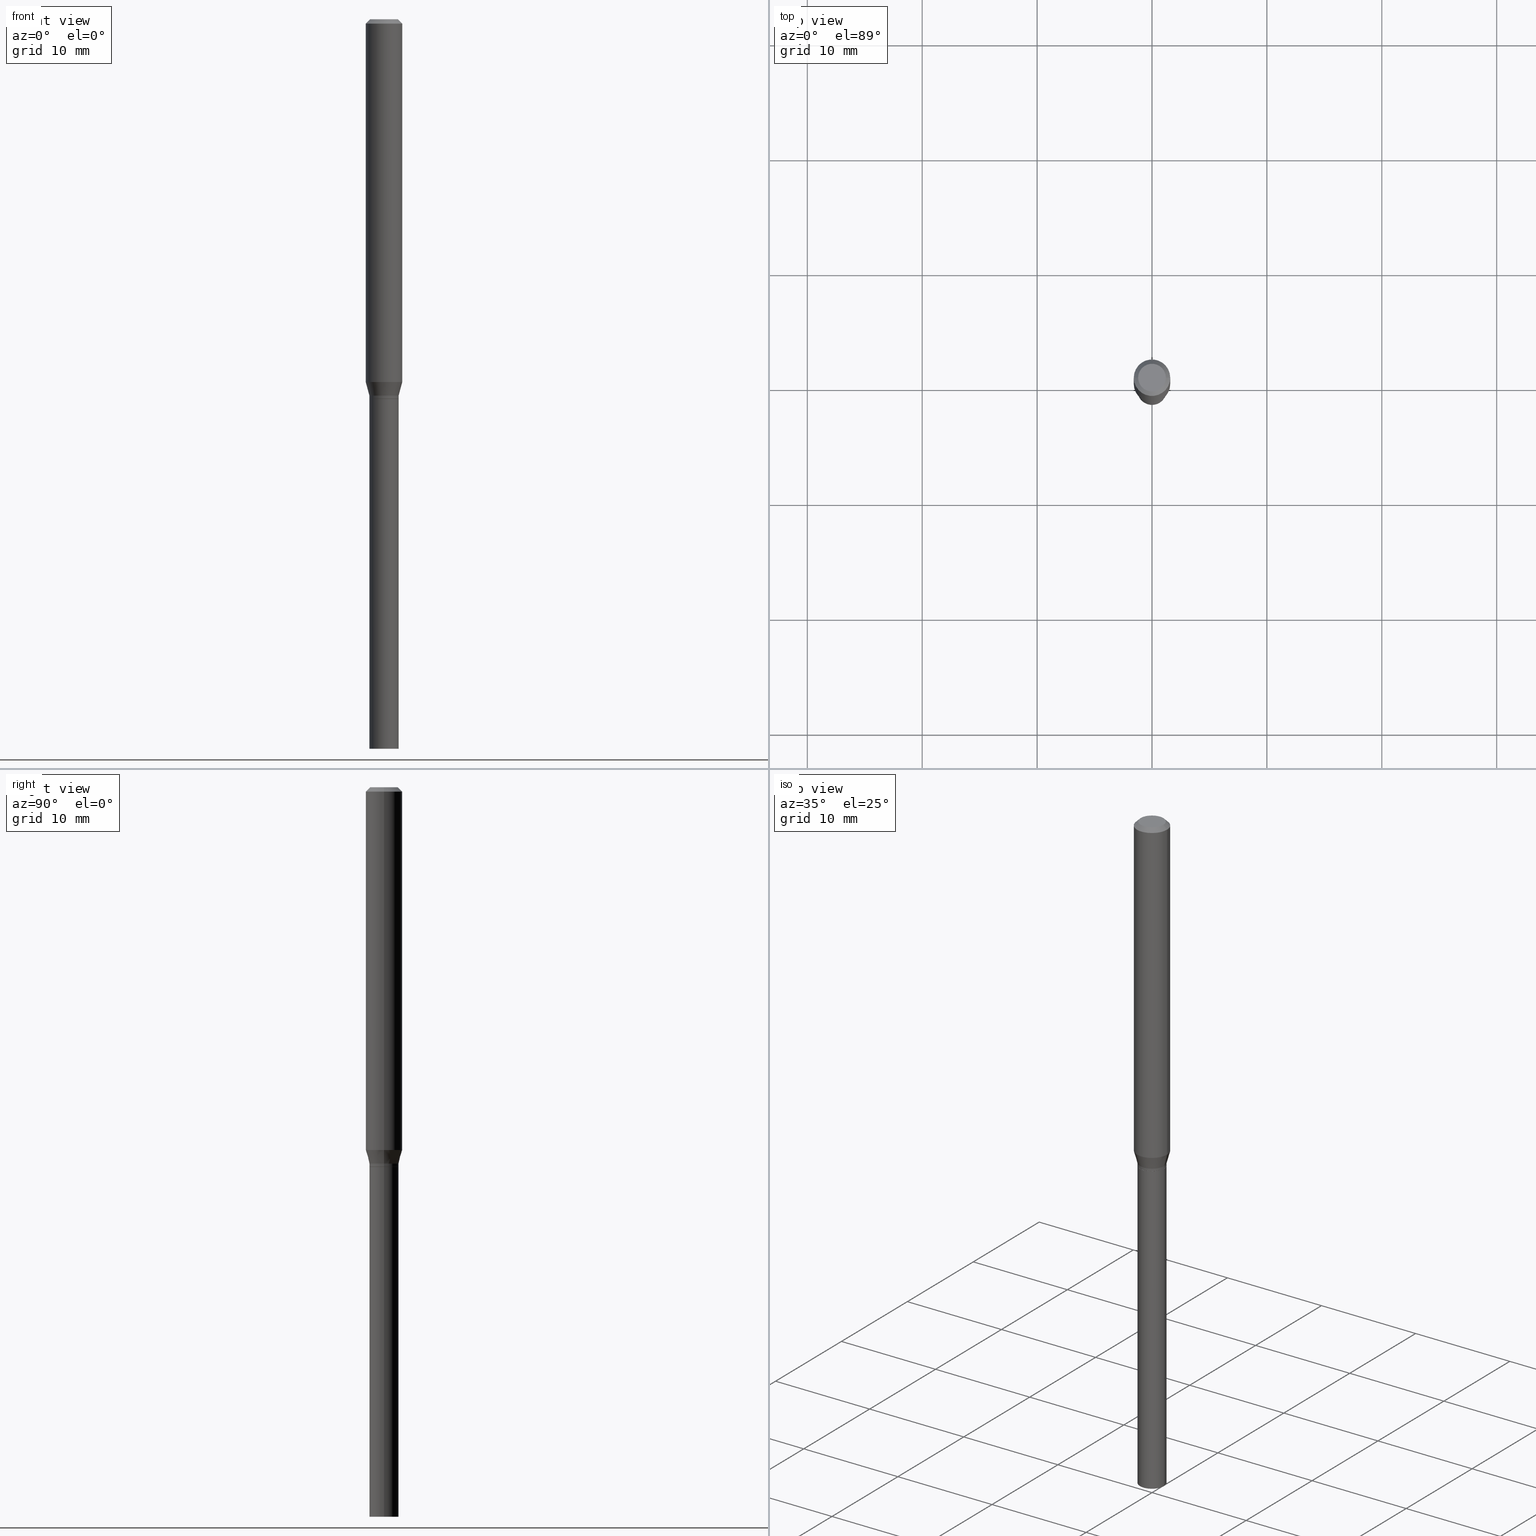
[diagram: canonical four-view strip — front | top / right | iso, engineering-drawing reading convention]
A machine part, canonical four-view strip (front | top / right | iso — engineering-drawing reading convention). The complete STEP part file that produces these views, byte-faithful:
ISO-10303-21;
HEADER;
FILE_DESCRIPTION (( 'STEP AP203' ),
    '1' );
FILE_NAME ('00661.STEP',
    '2024-03-19T22:24:16',
    ( '' ),
    ( '' ),
    'SwSTEP 2.0',
    'SolidWorks 2023',
    '' );
FILE_SCHEMA (( 'CONFIG_CONTROL_DESIGN' ));
ENDSEC;

DATA;
#1 = EDGE_CURVE ( 'NONE', #392, #311, #45, .T. ) ;
#2 = EDGE_LOOP ( 'NONE', ( #445, #175, #60, #393 ) ) ;
#3 = AXIS2_PLACEMENT_3D ( 'NONE', #299, #335, #261 ) ;
#4 = AXIS2_PLACEMENT_3D ( 'NONE', #322, #284, #429 ) ;
#5 = EDGE_LOOP ( 'NONE', ( #268, #214, #257, #370 ) ) ;
#6 = EDGE_CURVE ( 'NONE', #208, #189, #412, .T. ) ;
#7 = APPROVAL_DATE_TIME ( #186, #229 ) ;
#8 = ORIENTED_EDGE ( 'NONE', *, *, #291, .F. ) ;
#9 = CC_DESIGN_DATE_AND_TIME_ASSIGNMENT ( #64, #275, ( #306 ) ) ;
#10 = CARTESIAN_POINT ( 'NONE',  ( -0.04999999999999966971, -4.148739559227611026E-15, -1.290000000000000258 ) ) ;
#11 = EDGE_CURVE ( 'NONE', #85, #433, #40, .T. ) ;
#12 = CARTESIAN_POINT ( 'NONE',  ( 3.179109448040677352E-29, -4.538925740496089139E-15, -1.300000000000000044 ) ) ;
#13 = VECTOR ( 'NONE', #151, 39.37007874015748854 ) ;
#14 = PRODUCT ( '00661', '00661', '', ( #254 ) ) ;
#15 = DIRECTION ( 'NONE',  ( 1.000000000000000000, -6.982962677686265922E-15, 4.876176775795935793E-29 ) ) ;
#16 = CARTESIAN_POINT ( 'NONE',  ( 3.154654759978826367E-29, -4.504010927107658279E-15, -1.290000000000000258 ) ) ;
#17 = CIRCLE ( 'NONE', #380, 0.04999999999999966971 ) ;
#18 = CC_DESIGN_APPROVAL ( #283, ( #43 ) ) ;
#19 = DIRECTION ( 'NONE',  ( 1.000000000000000000, -6.982962677686262766E-15, 0.000000000000000000 ) ) ;
#20 = CARTESIAN_POINT ( 'NONE',  ( 0.05000000000000000278, -9.077851480992178278E-15, -2.500000000000000000 ) ) ;
#21 = EDGE_CURVE ( 'NONE', #110, #85, #264, .T. ) ;
#22 = DIRECTION ( 'NONE',  ( -2.445468806185136597E-29, 3.491481338843145583E-15, 1.000000000000000000 ) ) ;
#23 = CLOSED_SHELL ( 'NONE', ( #353, #188, #460, #126 ) ) ;
#24 = AXIS2_PLACEMENT_3D ( 'NONE', #119, #49, #439 ) ;
#25 = CARTESIAN_POINT ( 'NONE',  ( 3.668203209277705088E-31, -5.237222008264718399E-17, -0.01499999999999999944 ) ) ;
#26 = ORIENTED_EDGE ( 'NONE', *, *, #297, .F. ) ;
#27 = COORDINATED_UNIVERSAL_TIME_OFFSET ( 5, 0, .BEHIND. ) ;
#28 = CARTESIAN_POINT ( 'NONE',  ( -8.549555613484746295E-45, 1.220649954903729740E-30, 3.496080421005988683E-16 ) ) ;
#29 = ORIENTED_EDGE ( 'NONE', *, *, #410, .F. ) ;
#30 = COORDINATED_UNIVERSAL_TIME_OFFSET ( 5, 0, .BEHIND. ) ;
#31 = DIRECTION ( 'NONE',  ( -2.445468806185136597E-29, 3.491481338843145583E-15, 1.000000000000000000 ) ) ;
#32 = ORIENTED_EDGE ( 'NONE', *, *, #345, .T. ) ;
#33 = DIRECTION ( 'NONE',  ( -2.445468806185136877E-29, 3.491481338843145188E-15, 1.000000000000000000 ) ) ;
#34 = ORIENTED_EDGE ( 'NONE', *, *, #90, .T. ) ;
#35 = CALENDAR_DATE ( 2024, 19, 3 ) ;
#36 =( NAMED_UNIT ( * ) PLANE_ANGLE_UNIT ( ) SI_UNIT ( $, .RADIAN. ) );
#37 = ORIENTED_EDGE ( 'NONE', *, *, #147, .F. ) ;
#38 = CALENDAR_DATE ( 2024, 19, 3 ) ;
#39 = EDGE_CURVE ( 'NONE', #392, #195, #142, .T. ) ;
#40 = LINE ( 'NONE', #290, #198 ) ;
#41 = AXIS2_PLACEMENT_3D ( 'NONE', #279, #105, #246 ) ;
#42 = CALENDAR_DATE ( 2024, 19, 3 ) ;
#43 = PRODUCT_DEFINITION_FORMATION_WITH_SPECIFIED_SOURCE ( 'ANY', '', #14, .NOT_KNOWN. ) ;
#44 = APPLICATION_PROTOCOL_DEFINITION ( 'international standard', 'config_control_design', 1994, #296 ) ;
#45 = LINE ( 'NONE', #77, #341 ) ;
#46 = DIRECTION ( 'NONE',  ( -2.445468806185136597E-29, 3.491481338843145583E-15, 1.000000000000000000 ) ) ;
#47 = CARTESIAN_POINT ( 'NONE',  ( -0.04950000000000000233, -4.184557859120728428E-15, -1.300000000000000044 ) ) ;
#48 = CIRCLE ( 'NONE', #385, 0.05000000000000000278 ) ;
#49 = DIRECTION ( 'NONE',  ( -2.445468806185136597E-29, 3.491481338843145583E-15, 1.000000000000000000 ) ) ;
#50 = FACE_OUTER_BOUND ( 'NONE', #247, .T. ) ;
#51 = DIRECTION ( 'NONE',  ( -2.445468806185136597E-29, 3.491481338843145583E-15, 1.000000000000000000 ) ) ;
#52 = CARTESIAN_POINT ( 'NONE',  ( -0.04749999999999999362, 3.578768372314216422E-16, 3.496080421005964524E-16 ) ) ;
#53 = AXIS2_PLACEMENT_3D ( 'NONE', #16, #166, #19 ) ;
#54 = ORIENTED_EDGE ( 'NONE', *, *, #422, .F. ) ;
#55 = CARTESIAN_POINT ( 'NONE',  ( 3.154654759978826367E-29, -4.504010927107658279E-15, -1.290000000000000258 ) ) ;
#56 = ADVANCED_FACE ( 'NONE', ( #187 ), #358, .T. ) ;
#57 = DIRECTION ( 'NONE',  ( -2.445468806185136597E-29, 3.491481338843145583E-15, 1.000000000000000000 ) ) ;
#58 = DIRECTION ( 'NONE',  ( 1.000000000000000000, -6.982962677686267499E-15, 4.876176775795936353E-29 ) ) ;
#59 = AXIS2_PLACEMENT_3D ( 'NONE', #222, #251, #366 ) ;
#60 = ORIENTED_EDGE ( 'NONE', *, *, #386, .T. ) ;
#61 = VECTOR ( 'NONE', #263, 39.37007874015748854 ) ;
#62 = CARTESIAN_POINT ( 'NONE',  ( -0.05000000000000000278, -6.278543175921927421E-15, -1.300000000000000266 ) ) ;
#63 = ORIENTED_EDGE ( 'NONE', *, *, #74, .T. ) ;
#64 = DATE_AND_TIME ( #35, #248 ) ;
#65 = DIRECTION ( 'NONE',  ( 1.000000000000000000, -6.982962677686266711E-15, 0.000000000000000000 ) ) ;
#66 = CC_DESIGN_PERSON_AND_ORGANIZATION_ASSIGNMENT ( #150, #355, ( #319 ) ) ;
#67 = ORIENTED_EDGE ( 'NONE', *, *, #386, .F. ) ;
#68 = CARTESIAN_POINT ( 'NONE',  ( -0.06250000000000000000, -1.752662452806080514E-15, -0.01499999999999999944 ) ) ;
#69 = VERTEX_POINT ( 'NONE', #224 ) ;
#70 = AXIS2_PLACEMENT_3D ( 'NONE', #466, #250, #114 ) ;
#71 = AXIS2_PLACEMENT_3D ( 'NONE', #361, #441, #122 ) ;
#72 = DIRECTION ( 'NONE',  ( -0.7071067811865392461, 2.468850131082170680E-15, -0.7071067811865555663 ) ) ;
#73 = EDGE_LOOP ( 'NONE', ( #8, #108, #217, #29 ) ) ;
#74 = EDGE_CURVE ( 'NONE', #69, #75, #120, .T. ) ;
#75 = VERTEX_POINT ( 'NONE', #47 ) ;
#76 = FACE_OUTER_BOUND ( 'NONE', #288, .T. ) ;
#77 = CARTESIAN_POINT ( 'NONE',  ( -0.04999999999999993339, 3.552713678800496196E-16, -2.459467545127449808E-30 ) ) ;
#78 = AXIS2_PLACEMENT_3D ( 'NONE', #55, #200, #203 ) ;
#79 = CARTESIAN_POINT ( 'NONE',  ( -0.06250000000000000000, -3.897041895379576565E-15, -1.243349364905387944 ) ) ;
#80 = EDGE_CURVE ( 'NONE', #311, #459, #256, .T. ) ;
#81 = ORIENTED_EDGE ( 'NONE', *, *, #11, .F. ) ;
#82 = LINE ( 'NONE', #190, #13 ) ;
#83 = ORIENTED_EDGE ( 'NONE', *, *, #253, .T. ) ;
#84 = ORIENTED_EDGE ( 'NONE', *, *, #74, .F. ) ;
#85 = VERTEX_POINT ( 'NONE', #123 ) ;
#86 = CIRCLE ( 'NONE', #305, 0.04950000000000000233 ) ;
#87 = DIRECTION ( 'NONE',  ( -2.445468806185136597E-29, 3.491481338843145583E-15, 1.000000000000000000 ) ) ;
#88 = EDGE_CURVE ( 'NONE', #281, #433, #211, .T. ) ;
#89 = CARTESIAN_POINT ( 'NONE',  ( 3.179109448040678473E-29, -4.538925740496089928E-15, -1.300000000000000266 ) ) ;
#90 = EDGE_CURVE ( 'NONE', #75, #392, #95, .T. ) ;
#91 = DIRECTION ( 'NONE',  ( 2.438088387897960049E-29, -3.491481338843145188E-15, -1.000000000000000000 ) ) ;
#92 = PLANE ( 'NONE',  #371 ) ;
#93 = EDGE_CURVE ( 'NONE', #115, #98, #446, .T. ) ;
#94 = CIRCLE ( 'NONE', #102, 0.06250000000000000000 ) ;
#95 = LINE ( 'NONE', #269, #61 ) ;
#96 = DESIGN_CONTEXT ( 'detailed design', #343, 'design' ) ;
#97 = LINE ( 'NONE', #359, #367 ) ;
#98 = VERTEX_POINT ( 'NONE', #382 ) ;
#99 = APPROVAL_ROLE ( '' ) ;
#100 = LINE ( 'NONE', #135, #132 ) ;
#101 = EDGE_LOOP ( 'NONE', ( #301, #409, #255, #182 ) ) ;
#102 = AXIS2_PLACEMENT_3D ( 'NONE', #25, #31, #65 ) ;
#103 = DATE_AND_TIME ( #351, #372 ) ;
#104 = ADVANCED_FACE ( 'NONE', ( #163 ), #417, .F. ) ;
#105 = DIRECTION ( 'NONE',  ( -2.445468806185136597E-29, 3.491481338843145583E-15, 1.000000000000000000 ) ) ;
#106 = APPROVAL_STATUS ( 'not_yet_approved' ) ;
#107 = DIRECTION ( 'NONE',  ( -2.445468806185136877E-29, 3.491481338843145188E-15, 1.000000000000000000 ) ) ;
#108 = ORIENTED_EDGE ( 'NONE', *, *, #11, .T. ) ;
#109 = DIRECTION ( 'NONE',  ( -2.445468806185136877E-29, 3.491481338843145188E-15, 1.000000000000000000 ) ) ;
#110 = VERTEX_POINT ( 'NONE', #52 ) ;
#111 = AXIS2_PLACEMENT_3D ( 'NONE', #394, #209, #423 ) ;
#112 = DATE_AND_TIME ( #286, #205 ) ;
#113 = LOCAL_TIME ( 18, 24, 16.00000000000000000, #30 ) ;
#114 = DIRECTION ( 'NONE',  ( 1.000000000000000000, -6.982962677686274599E-15, 0.000000000000000000 ) ) ;
#115 = VERTEX_POINT ( 'NONE', #419 ) ;
#116 = DIRECTION ( 'NONE',  ( 2.445468806185136597E-29, -3.491481338843145583E-15, -1.000000000000000000 ) ) ;
#117 = DIRECTION ( 'NONE',  ( 0.7071067811865392461, -7.319954787623226069E-15, -0.7071067811865555663 ) ) ;
#118 =( NAMED_UNIT ( * ) SI_UNIT ( $, .STERADIAN. ) SOLID_ANGLE_UNIT ( ) );
#119 = CARTESIAN_POINT ( 'NONE',  ( 3.179109448040677352E-29, -4.538925740496089139E-15, -1.300000000000000044 ) ) ;
#120 = CIRCLE ( 'NONE', #24, 0.04950000000000000233 ) ;
#121 = CIRCLE ( 'NONE', #448, 0.06250000000000000000 ) ;
#122 = DIRECTION ( 'NONE',  ( 1.000000000000000000, 0.000000000000000000, 0.000000000000000000 ) ) ;
#123 = CARTESIAN_POINT ( 'NONE',  ( 0.04749999999999999362, -4.035134999187572214E-16, 3.496080421006014321E-16 ) ) ;
#124 = ORIENTED_EDGE ( 'NONE', *, *, #39, .F. ) ;
#125 = DIRECTION ( 'NONE',  ( 0.2588190451025210725, 1.565188264969624137E-15, 0.9659258262890682012 ) ) ;
#126 = ADVANCED_FACE ( 'NONE', ( #131 ), #92, .F. ) ;
#127 = AXIS2_PLACEMENT_3D ( 'NONE', #458, #174, #207 ) ;
#128 = CARTESIAN_POINT ( 'NONE',  ( 0.05000000000000020400, -4.886328133710983338E-15, -1.299500000000000544 ) ) ;
#129 = DIRECTION ( 'NONE',  ( -2.438088387897960049E-29, 3.491481338843145188E-15, 1.000000000000000000 ) ) ;
#130 = CARTESIAN_POINT ( 'NONE',  ( 3.179109448040678473E-29, -4.538925740496089928E-15, -1.300000000000000266 ) ) ;
#131 = FACE_OUTER_BOUND ( 'NONE', #143, .T. ) ;
#132 = VECTOR ( 'NONE', #33, 39.37007874015748143 ) ;
#133 = APPROVAL_PERSON_ORGANIZATION ( #212, #283, #396 ) ;
#134 = CC_DESIGN_APPROVAL ( #229, ( #319 ) ) ;
#135 = CARTESIAN_POINT ( 'NONE',  ( 0.04999999999999993339, -3.491481338843128918E-16, 2.438088387897964744E-30 ) ) ;
#136 = ORIENTED_EDGE ( 'NONE', *, *, #416, .T. ) ;
#137 = COORDINATED_UNIVERSAL_TIME_OFFSET ( 5, 0, .BEHIND. ) ;
#138 = DIRECTION ( 'NONE',  ( -2.445468806185136597E-29, 3.491481338843145583E-15, 1.000000000000000000 ) ) ;
#139 = ORIENTED_EDGE ( 'NONE', *, *, #309, .T. ) ;
#140 = APPROVAL_DATE_TIME ( #112, #283 ) ;
#141 = FACE_OUTER_BOUND ( 'NONE', #73, .T. ) ;
#142 = CIRCLE ( 'NONE', #321, 0.05000000000000020400 ) ;
#143 = EDGE_LOOP ( 'NONE', ( #389, #364 ) ) ;
#144 = AXIS2_PLACEMENT_3D ( 'NONE', #381, #230, #267 ) ;
#145 = DIRECTION ( 'NONE',  ( -2.445468806185136597E-29, 3.491481338843145583E-15, 1.000000000000000000 ) ) ;
#146 = EDGE_LOOP ( 'NONE', ( #63, #34, #242, #54 ) ) ;
#147 = EDGE_CURVE ( 'NONE', #98, #459, #461, .T. ) ;
#148 = DIRECTION ( 'NONE',  ( -2.445468806185136597E-29, 3.491481338843145583E-15, 1.000000000000000000 ) ) ;
#149 = ORIENTED_EDGE ( 'NONE', *, *, #428, .F. ) ;
#150 = PERSON_AND_ORGANIZATION ( #350, #185 ) ;
#151 = DIRECTION ( 'NONE',  ( 0.7071067811869518049, -2.468850131086492060E-15, 0.7071067811861430075 ) ) ;
#152 = CIRCLE ( 'NONE', #360, 0.05000000000000000278 ) ;
#153 = CC_DESIGN_SECURITY_CLASSIFICATION ( #306, ( #43 ) ) ;
#154 = PERSON_AND_ORGANIZATION ( #350, #185 ) ;
#155 = ORIENTED_EDGE ( 'NONE', *, *, #233, .T. ) ;
#156 = CARTESIAN_POINT ( 'NONE',  ( 3.177886713637586232E-29, -4.537179999826668424E-15, -1.299500000000000544 ) ) ;
#157 = ADVANCED_FACE ( 'NONE', ( #339 ), #308, .T. ) ;
#158 = PERSON_AND_ORGANIZATION_ROLE ( 'design_owner' ) ;
#159 = DIRECTION ( 'NONE',  ( -0.2588190451025210725, 5.211531920934548675E-15, 0.9659258262890682012 ) ) ;
#160 = APPROVAL_PERSON_ORGANIZATION ( #278, #334, #99 ) ;
#161 = EDGE_LOOP ( 'NONE', ( #155, #327, #37, #430 ) ) ;
#162 = EDGE_CURVE ( 'NONE', #98, #433, #201, .T. ) ;
#163 = FACE_OUTER_BOUND ( 'NONE', #357, .T. ) ;
#164 = CARTESIAN_POINT ( 'NONE',  ( 3.040572087066227108E-29, -4.341131105229639181E-15, -1.243349364905387944 ) ) ;
#165 = CIRCLE ( 'NONE', #425, 0.05000000000000020400 ) ;
#166 = DIRECTION ( 'NONE',  ( -2.445468806185136597E-29, 3.491481338843145583E-15, 1.000000000000000000 ) ) ;
#167 = CARTESIAN_POINT ( 'NONE',  ( 3.154654759978826367E-29, -4.504010927107658279E-15, -1.290000000000000258 ) ) ;
#168 = DIRECTION ( 'NONE',  ( -2.445468806185136597E-29, 3.491481338843145583E-15, 1.000000000000000000 ) ) ;
#169 = CARTESIAN_POINT ( 'NONE',  ( 0.05000000000000000278, -3.491481338843133848E-16, 2.438088387897968247E-30 ) ) ;
#170 = AXIS2_PLACEMENT_3D ( 'NONE', #193, #447, #340 ) ;
#171 = CARTESIAN_POINT ( 'NONE',  ( -0.05000000000000000278, 3.552713678800501127E-16, -2.459467545127453311E-30 ) ) ;
#172 = ADVANCED_FACE ( 'NONE', ( #199 ), #258, .T. ) ;
#173 = EDGE_LOOP ( 'NONE', ( #32, #83, #277, #210 ) ) ;
#174 = DIRECTION ( 'NONE',  ( 2.445468806185136597E-29, -3.491481338843145583E-15, -1.000000000000000000 ) ) ;
#175 = ORIENTED_EDGE ( 'NONE', *, *, #39, .T. ) ;
#176 = PERSON_AND_ORGANIZATION_ROLE ( 'creator' ) ;
#177 = DIRECTION ( 'NONE',  ( -2.445468806185136597E-29, 3.491481338843145583E-15, 1.000000000000000000 ) ) ;
#178 = AXIS2_PLACEMENT_3D ( 'NONE', #270, #377, #15 ) ;
#179 = APPROVAL_PERSON_ORGANIZATION ( #436, #229, #260 ) ;
#180 = CARTESIAN_POINT ( 'NONE',  ( -0.05000000000000020400, -4.181908631946618016E-15, -1.299500000000000544 ) ) ;
#181 = SHAPE_DEFINITION_REPRESENTATION ( #294, #431 ) ;
#182 = ORIENTED_EDGE ( 'NONE', *, *, #88, .F. ) ;
#183 = EDGE_LOOP ( 'NONE', ( #136, #252, #333, #67 ) ) ;
#184 = VECTOR ( 'NONE', #303, 39.37007874015748143 ) ;
#185 = ORGANIZATION ( 'UNSPECIFIED', 'UNSPECIFIED', '' ) ;
#186 = DATE_AND_TIME ( #42, #444 ) ;
#187 = FACE_OUTER_BOUND ( 'NONE', #146, .T. ) ;
#188 = ADVANCED_FACE ( 'NONE', ( #50 ), #196, .F. ) ;
#189 = VERTEX_POINT ( 'NONE', #20 ) ;
#190 = CARTESIAN_POINT ( 'NONE',  ( 0.04950000000000000233, -4.884582393041559467E-15, -1.300000000000000044 ) ) ;
#191 = DIRECTION ( 'NONE',  ( -2.445468806185136597E-29, 3.491481338843145583E-15, 1.000000000000000000 ) ) ;
#192 = CC_DESIGN_PERSON_AND_ORGANIZATION_ASSIGNMENT ( #316, #427, ( #306 ) ) ;
#193 = CARTESIAN_POINT ( 'NONE',  ( 3.668203209277705088E-31, -5.237222008264718399E-17, -0.01499999999999999944 ) ) ;
#194 = VECTOR ( 'NONE', #107, 39.37007874015748143 ) ;
#195 = VERTEX_POINT ( 'NONE', #128 ) ;
#196 = PLANE ( 'NONE',  #178 ) ;
#197 = DIRECTION ( 'NONE',  ( 1.000000000000000000, -6.982962677686266711E-15, 4.876176775795935793E-29 ) ) ;
#198 = VECTOR ( 'NONE', #117, 39.37007874015748854 ) ;
#199 = FACE_OUTER_BOUND ( 'NONE', #5, .T. ) ;
#200 = DIRECTION ( 'NONE',  ( -2.445468806185136597E-29, 3.491481338843145583E-15, 1.000000000000000000 ) ) ;
#201 = LINE ( 'NONE', #310, #184 ) ;
#202 = EDGE_CURVE ( 'NONE', #459, #98, #121, .T. ) ;
#203 = DIRECTION ( 'NONE',  ( 1.000000000000000000, -6.982962677686262766E-15, 0.000000000000000000 ) ) ;
#204 = VECTOR ( 'NONE', #125, 39.37007874015748143 ) ;
#205 = LOCAL_TIME ( 18, 24, 16.00000000000000000, #390 ) ;
#206 = CARTESIAN_POINT ( 'NONE',  ( 3.179109448040677352E-29, -4.538925740496089139E-15, -1.300000000000000044 ) ) ;
#207 = DIRECTION ( 'NONE',  ( -1.000000000000000000, 6.982962677686266711E-15, 0.000000000000000000 ) ) ;
#208 = VERTEX_POINT ( 'NONE', #272 ) ;
#209 = DIRECTION ( 'NONE',  ( -2.445468806185136597E-29, 3.491481338843145583E-15, 1.000000000000000000 ) ) ;
#210 = ORIENTED_EDGE ( 'NONE', *, *, #309, .F. ) ;
#211 = CIRCLE ( 'NONE', #170, 0.06250000000000000000 ) ;
#212 = PERSON_AND_ORGANIZATION ( #350, #185 ) ;
#213 = CARTESIAN_POINT ( 'NONE',  ( 3.177886713637586232E-29, -4.537179999826668424E-15, -1.299500000000000544 ) ) ;
#214 = ORIENTED_EDGE ( 'NONE', *, *, #239, .T. ) ;
#215 = DATE_AND_TIME ( #38, #113 ) ;
#216 = APPLICATION_PROTOCOL_DEFINITION ( 'international standard', 'config_control_design', 1994, #343 ) ;
#217 = ORIENTED_EDGE ( 'NONE', *, *, #338, .T. ) ;
#218 = EDGE_CURVE ( 'NONE', #402, #349, #48, .T. ) ;
#219 = AXIS2_PLACEMENT_3D ( 'NONE', #12, #221, #295 ) ;
#220 = DIRECTION ( 'NONE',  ( 1.000000000000000000, -6.982962677686267499E-15, 4.876176775795936353E-29 ) ) ;
#221 = DIRECTION ( 'NONE',  ( -2.445468806185136597E-29, 3.491481338843145583E-15, 1.000000000000000000 ) ) ;
#222 = CARTESIAN_POINT ( 'NONE',  ( -8.549555613484746295E-45, 1.220649954903729740E-30, 3.496080421005988683E-16 ) ) ;
#223 = ADVANCED_FACE ( 'NONE', ( #344 ), #228, .T. ) ;
#224 = CARTESIAN_POINT ( 'NONE',  ( 0.04950000000000000233, -4.884582393041559467E-15, -1.300000000000000044 ) ) ;
#225 = CIRCLE ( 'NONE', #53, 0.04999999999999966971 ) ;
#226 = DIRECTION ( 'NONE',  ( -2.445468806185136597E-29, 3.491481338843145583E-15, 1.000000000000000000 ) ) ;
#227 = ORIENTED_EDGE ( 'NONE', *, *, #88, .T. ) ;
#228 = CYLINDRICAL_SURFACE ( 'NONE', #336, 0.06250000000000000000 ) ;
#229 = APPROVAL ( #401, 'UNSPECIFIED' ) ;
#230 = DIRECTION ( 'NONE',  ( -2.445468806185136597E-29, 3.491481338843145583E-15, 1.000000000000000000 ) ) ;
#231 = CARTESIAN_POINT ( 'NONE',  ( 3.491481338843450872E-16, 0.04999999999999546474, -1.300000000000000711 ) ) ;
#232 = CARTESIAN_POINT ( 'NONE',  ( 3.154654759978826367E-29, -4.504010927107658279E-15, -1.290000000000000258 ) ) ;
#233 = EDGE_CURVE ( 'NONE', #115, #311, #225, .T. ) ;
#234 = CARTESIAN_POINT ( 'NONE',  ( 3.316907271900976096E-16, 0.04749999999999999362, 8.958657455250042346E-18 ) ) ;
#235 = ORIENTED_EDGE ( 'NONE', *, *, #162, .F. ) ;
#236 = SECURITY_CLASSIFICATION_LEVEL ( 'unclassified' ) ;
#237 = FACE_OUTER_BOUND ( 'NONE', #2, .T. ) ;
#238 = AXIS2_PLACEMENT_3D ( 'NONE', #234, #348, #432 ) ;
#239 = EDGE_CURVE ( 'NONE', #311, #115, #17, .T. ) ;
#240 = CARTESIAN_POINT ( 'NONE',  ( -0.04999999999999966971, -4.022890727303593795E-15, -1.290000000000000258 ) ) ;
#241 = ADVANCED_FACE ( 'NONE', ( #418 ), #435, .T. ) ;
#242 = ORIENTED_EDGE ( 'NONE', *, *, #416, .F. ) ;
#243 = CYLINDRICAL_SURFACE ( 'NONE', #111, 0.04999999999999993339 ) ;
#244 = ORIENTED_EDGE ( 'NONE', *, *, #410, .T. ) ;
#245 = DATE_TIME_ROLE ( 'creation_date' ) ;
#246 = DIRECTION ( 'NONE',  ( 1.000000000000000000, -6.982962677686264344E-15, 0.000000000000000000 ) ) ;
#247 = EDGE_LOOP ( 'NONE', ( #332, #274 ) ) ;
#248 = LOCAL_TIME ( 18, 24, 16.00000000000000000, #137 ) ;
#249 = ADVANCED_FACE ( 'NONE', ( #426 ), #352, .F. ) ;
#250 = DIRECTION ( 'NONE',  ( -2.445468806185136597E-29, 3.491481338843145583E-15, 1.000000000000000000 ) ) ;
#251 = DIRECTION ( 'NONE',  ( -2.445468806185136597E-29, 3.491481338843145583E-15, 1.000000000000000000 ) ) ;
#252 = ORIENTED_EDGE ( 'NONE', *, *, #1, .T. ) ;
#253 = EDGE_CURVE ( 'NONE', #208, #349, #317, .T. ) ;
#254 = MECHANICAL_CONTEXT ( 'NONE', #296, 'mechanical' ) ;
#255 = ORIENTED_EDGE ( 'NONE', *, *, #162, .T. ) ;
#256 = LINE ( 'NONE', #10, #265 ) ;
#257 = ORIENTED_EDGE ( 'NONE', *, *, #93, .T. ) ;
#258 = CONICAL_SURFACE ( 'NONE', #406, 0.04999999999999966971, 0.2617993877991497409 ) ;
#259 = DIMENSIONAL_EXPONENTS ( 1.000000000000000000, 0.000000000000000000, 0.000000000000000000, 0.000000000000000000, 0.000000000000000000, 0.000000000000000000, 0.000000000000000000 ) ;
#260 = APPROVAL_ROLE ( '' ) ;
#261 = DIRECTION ( 'NONE',  ( 1.000000000000000000, -6.982962677686274599E-15, 0.000000000000000000 ) ) ;
#262 = CC_DESIGN_PERSON_AND_ORGANIZATION_ASSIGNMENT ( #434, #176, ( #43 ) ) ;
#263 = DIRECTION ( 'NONE',  ( -0.7071067811869518049, 7.493145998871813553E-15, 0.7071067811861430075 ) ) ;
#264 = CIRCLE ( 'NONE', #59, 0.04749999999999999362 ) ;
#265 = VECTOR ( 'NONE', #159, 39.37007874015748143 ) ;
#266 = CONICAL_SURFACE ( 'NONE', #387, 0.06250000000000000000, 0.7853981633974367327 ) ;
#267 = DIRECTION ( 'NONE',  ( 1.000000000000000000, -6.982962677686266711E-15, 4.876176775795935793E-29 ) ) ;
#268 = ORIENTED_EDGE ( 'NONE', *, *, #80, .F. ) ;
#269 = CARTESIAN_POINT ( 'NONE',  ( -0.04950000000000000233, -4.187207086294839629E-15, -1.300000000000000044 ) ) ;
#270 = CARTESIAN_POINT ( 'NONE',  ( 6.198122052593289668E-29, -8.607766087339451973E-15, -2.500000000000000000 ) ) ;
#271 = CIRCLE ( 'NONE', #70, 0.05000000000000000278 ) ;
#272 = CARTESIAN_POINT ( 'NONE',  ( -0.05000000000000000278, -6.278543175921927421E-15, -2.500000000000000000 ) ) ;
#273 = CARTESIAN_POINT ( 'NONE',  ( 0.000000000000000000, 0.000000000000000000, 0.000000000000000000 ) ) ;
#274 = ORIENTED_EDGE ( 'NONE', *, *, #6, .F. ) ;
#275 = DATE_TIME_ROLE ( 'classification_date' ) ;
#276 = FACE_OUTER_BOUND ( 'NONE', #183, .T. ) ;
#277 = ORIENTED_EDGE ( 'NONE', *, *, #218, .F. ) ;
#278 = PERSON_AND_ORGANIZATION ( #350, #185 ) ;
#279 = CARTESIAN_POINT ( 'NONE',  ( 3.179109448040677352E-29, -4.538925740496089139E-15, -1.300000000000000044 ) ) ;
#280 = AXIS2_PLACEMENT_3D ( 'NONE', #130, #129, #346 ) ;
#281 = VERTEX_POINT ( 'NONE', #68 ) ;
#282 = PERSON_AND_ORGANIZATION_ROLE ( 'design_supplier' ) ;
#283 = APPROVAL ( #314, 'UNSPECIFIED' ) ;
#284 = DIRECTION ( 'NONE',  ( -2.445468806185136597E-29, 3.491481338843145583E-15, 1.000000000000000000 ) ) ;
#285 = ORIENTED_EDGE ( 'NONE', *, *, #422, .T. ) ;
#286 = CALENDAR_DATE ( 2024, 19, 3 ) ;
#287 = CARTESIAN_POINT ( 'NONE',  ( 6.113672015462842613E-29, -8.728703347107864943E-15, -2.500000000000000000 ) ) ;
#288 = EDGE_LOOP ( 'NONE', ( #421, #384, #139, #149 ) ) ;
#289 = LENGTH_MEASURE_WITH_UNIT ( LENGTH_MEASURE( 0.02539999999999999897 ), #407 );
#290 = CARTESIAN_POINT ( 'NONE',  ( 0.06250000000000000000, -4.811533449433679005E-16, -0.01499999999999999944 ) ) ;
#291 = EDGE_CURVE ( 'NONE', #85, #110, #342, .T. ) ;
#292 = CARTESIAN_POINT ( 'NONE',  ( 0.000000000000000000, 0.000000000000000000, 0.000000000000000000 ) ) ;
#293 = ORIENTED_EDGE ( 'NONE', *, *, #297, .T. ) ;
#294 = PRODUCT_DEFINITION_SHAPE ( 'NONE', 'NONE',  #319 ) ;
#295 = DIRECTION ( 'NONE',  ( 1.000000000000000000, -6.982962677686264344E-15, 0.000000000000000000 ) ) ;
#296 = APPLICATION_CONTEXT ( 'configuration controlled 3d designs of mechanical parts and assemblies' ) ;
#297 = EDGE_CURVE ( 'NONE', #75, #69, #86, .T. ) ;
#298 = ADVANCED_FACE ( 'NONE', ( #141 ), #323, .T. ) ;
#299 = CARTESIAN_POINT ( 'NONE',  ( 6.113672015462842613E-29, -8.728703347107864943E-15, -2.500000000000000000 ) ) ;
#300 = CONICAL_SURFACE ( 'NONE', #41, 0.04950000000000000233, 0.7853981633980202659 ) ;
#301 = ORIENTED_EDGE ( 'NONE', *, *, #379, .F. ) ;
#302 = CARTESIAN_POINT ( 'NONE',  ( 3.040572087066227108E-29, -4.341131105229639181E-15, -1.243349364905387944 ) ) ;
#303 = DIRECTION ( 'NONE',  ( -2.445468806185136877E-29, 3.491481338843145188E-15, 1.000000000000000000 ) ) ;
#304 = ADVANCED_FACE ( 'NONE', ( #313 ), #300, .T. ) ;
#305 = AXIS2_PLACEMENT_3D ( 'NONE', #206, #145, #315 ) ;
#306 = SECURITY_CLASSIFICATION ( '', '', #236 ) ;
#307 = DIRECTION ( 'NONE',  ( -1.000000000000000000, 6.982962677686265922E-15, -4.876176775795935793E-29 ) ) ;
#308 = CYLINDRICAL_SURFACE ( 'NONE', #144, 0.06250000000000000000 ) ;
#309 = EDGE_CURVE ( 'NONE', #189, #402, #462, .T. ) ;
#310 = CARTESIAN_POINT ( 'NONE',  ( 0.06250000000000000000, -4.364351673553916694E-16, 3.047610484872459871E-30 ) ) ;
#311 = VERTEX_POINT ( 'NONE', #240 ) ;
#312 = VECTOR ( 'NONE', #388, 39.37007874015748143 ) ;
#313 = FACE_OUTER_BOUND ( 'NONE', #408, .T. ) ;
#314 = APPROVAL_STATUS ( 'not_yet_approved' ) ;
#315 = DIRECTION ( 'NONE',  ( 1.000000000000000000, -6.982962677686264344E-15, 0.000000000000000000 ) ) ;
#316 = PERSON_AND_ORGANIZATION ( #350, #185 ) ;
#317 = LINE ( 'NONE', #171, #312 ) ;
#318 = EDGE_LOOP ( 'NONE', ( #81, #324, #244, #227 ) ) ;
#319 = PRODUCT_DEFINITION ( 'UNKNOWN', '', #43, #96 ) ;
#320 = APPROVAL_DATE_TIME ( #103, #334 ) ;
#321 = AXIS2_PLACEMENT_3D ( 'NONE', #156, #191, #442 ) ;
#322 = CARTESIAN_POINT ( 'NONE',  ( 0.000000000000000000, 0.000000000000000000, 0.000000000000000000 ) ) ;
#323 = CONICAL_SURFACE ( 'NONE', #127, 0.06250000000000000000, 0.7853981633974367327 ) ;
#324 = ORIENTED_EDGE ( 'NONE', *, *, #21, .F. ) ;
#325 = CARTESIAN_POINT ( 'NONE',  ( 0.05000000000000000278, -4.888073874380404052E-15, -1.300000000000000266 ) ) ;
#326 = ORIENTED_EDGE ( 'NONE', *, *, #21, .T. ) ;
#327 = ORIENTED_EDGE ( 'NONE', *, *, #80, .T. ) ;
#328 = CARTESIAN_POINT ( 'NONE',  ( 0.06250000000000000000, -4.888073874380388472E-16, -0.01499999999999999944 ) ) ;
#329 = MANIFOLD_SOLID_BREP ( 'Body-Move/Copy2[1]', #23 ) ;
#330 = AXIS2_PLACEMENT_3D ( 'NONE', #292, #46, #220 ) ;
#331 = DIRECTION ( 'NONE',  ( -1.000000000000000000, 6.982962677686266711E-15, 0.000000000000000000 ) ) ;
#332 = ORIENTED_EDGE ( 'NONE', *, *, #345, .F. ) ;
#333 = ORIENTED_EDGE ( 'NONE', *, *, #233, .F. ) ;
#334 = APPROVAL ( #106, 'UNSPECIFIED' ) ;
#335 = DIRECTION ( 'NONE',  ( -2.445468806185136597E-29, 3.491481338843145583E-15, 1.000000000000000000 ) ) ;
#336 = AXIS2_PLACEMENT_3D ( 'NONE', #376, #51, #197 ) ;
#337 = MANIFOLD_SOLID_BREP ( 'Body-Move/Copy2[2]', #405 ) ;
#338 = EDGE_CURVE ( 'NONE', #433, #281, #94, .T. ) ;
#339 = FACE_OUTER_BOUND ( 'NONE', #395, .T. ) ;
#340 = DIRECTION ( 'NONE',  ( 1.000000000000000000, -6.982962677686266711E-15, 0.000000000000000000 ) ) ;
#341 = VECTOR ( 'NONE', #437, 39.37007874015748143 ) ;
#342 = CIRCLE ( 'NONE', #443, 0.04749999999999999362 ) ;
#343 = APPLICATION_CONTEXT ( 'configuration controlled 3d designs of mechanical parts and assemblies' ) ;
#344 = FACE_OUTER_BOUND ( 'NONE', #101, .T. ) ;
#345 = EDGE_CURVE ( 'NONE', #189, #208, #152, .T. ) ;
#346 = DIRECTION ( 'NONE',  ( 1.000000000000000000, -6.982962677686265922E-15, 4.876176775795935793E-29 ) ) ;
#347 = DIRECTION ( 'NONE',  ( -2.445468806185136597E-29, 3.491481338843145583E-15, 1.000000000000000000 ) ) ;
#348 = DIRECTION ( 'NONE',  ( 2.438088387897960049E-29, -3.491481338843145188E-15, -1.000000000000000000 ) ) ;
#349 = VERTEX_POINT ( 'NONE', #62 ) ;
#350 = PERSON ( 'UNSPECIFIED', 'UNSPECIFIED', 'UNSPECIFIED', ('UNSPECIFIED'), ('UNSPECIFIED'), ('UNSPECIFIED') ) ;
#351 = CALENDAR_DATE ( 2024, 19, 3 ) ;
#352 = PLANE ( 'NONE',  #238 ) ;
#353 = ADVANCED_FACE ( 'NONE', ( #383 ), #356, .T. ) ;
#354 = ORIENTED_EDGE ( 'NONE', *, *, #379, .T. ) ;
#355 = PERSON_AND_ORGANIZATION_ROLE ( 'creator' ) ;
#356 = CYLINDRICAL_SURFACE ( 'NONE', #397, 0.05000000000000000278 ) ;
#357 = EDGE_LOOP ( 'NONE', ( #84, #26 ) ) ;
#358 = CONICAL_SURFACE ( 'NONE', #219, 0.04950000000000000233, 0.7853981633980202659 ) ;
#359 = CARTESIAN_POINT ( 'NONE',  ( -0.06250000000000000000, 4.440892098500626162E-16, -3.074334431409316114E-30 ) ) ;
#360 = AXIS2_PLACEMENT_3D ( 'NONE', #287, #177, #391 ) ;
#361 = CARTESIAN_POINT ( 'NONE',  ( 0.000000000000000000, 0.000000000000000000, 0.000000000000000000 ) ) ;
#362 = ORIENTED_EDGE ( 'NONE', *, *, #90, .F. ) ;
#363 = FACE_OUTER_BOUND ( 'NONE', #318, .T. ) ;
#364 = ORIENTED_EDGE ( 'NONE', *, *, #428, .T. ) ;
#365 = COORDINATED_UNIVERSAL_TIME_OFFSET ( 5, 0, .BEHIND. ) ;
#366 = DIRECTION ( 'NONE',  ( 1.000000000000000000, -6.982962677686267499E-15, 4.852736867747366768E-29 ) ) ;
#367 = VECTOR ( 'NONE', #109, 39.37007874015748143 ) ;
#368 = CYLINDRICAL_SURFACE ( 'NONE', #330, 0.05000000000000000278 ) ;
#369 = ADVANCED_FACE ( 'NONE', ( #237 ), #420, .T. ) ;
#370 = ORIENTED_EDGE ( 'NONE', *, *, #202, .F. ) ;
#371 = AXIS2_PLACEMENT_3D ( 'NONE', #231, #91, #307 ) ;
#372 = LOCAL_TIME ( 18, 24, 16.00000000000000000, #27 ) ;
#373 = ADVANCED_FACE ( 'NONE', ( #276 ), #243, .T. ) ;
#374 = DIRECTION ( 'NONE',  ( 1.000000000000000000, -6.982962677686270655E-15, 0.000000000000000000 ) ) ;
#375 = PRODUCT_RELATED_PRODUCT_CATEGORY ( 'detail', '', ( #14 ) ) ;
#376 = CARTESIAN_POINT ( 'NONE',  ( 0.000000000000000000, 0.000000000000000000, 0.000000000000000000 ) ) ;
#377 = DIRECTION ( 'NONE',  ( -2.438088387897960049E-29, 3.491481338843145188E-15, 1.000000000000000000 ) ) ;
#378 = UNCERTAINTY_MEASURE_WITH_UNIT (LENGTH_MEASURE( 1.000000000000000082E-05 ), #438, 'distance_accuracy_value', 'NONE');
#379 = EDGE_CURVE ( 'NONE', #459, #281, #97, .T. ) ;
#380 = AXIS2_PLACEMENT_3D ( 'NONE', #167, #347, #451 ) ;
#381 = CARTESIAN_POINT ( 'NONE',  ( 0.000000000000000000, 0.000000000000000000, 0.000000000000000000 ) ) ;
#382 = CARTESIAN_POINT ( 'NONE',  ( 0.06250000000000000000, -4.777566272585030851E-15, -1.243349364905387944 ) ) ;
#383 = FACE_OUTER_BOUND ( 'NONE', #173, .T. ) ;
#384 = ORIENTED_EDGE ( 'NONE', *, *, #6, .T. ) ;
#385 = AXIS2_PLACEMENT_3D ( 'NONE', #89, #57, #449 ) ;
#386 = EDGE_CURVE ( 'NONE', #195, #115, #100, .T. ) ;
#387 = AXIS2_PLACEMENT_3D ( 'NONE', #404, #116, #331 ) ;
#388 = DIRECTION ( 'NONE',  ( -2.445468806185136877E-29, 3.491481338843145188E-15, 1.000000000000000000 ) ) ;
#389 = ORIENTED_EDGE ( 'NONE', *, *, #218, .T. ) ;
#390 = COORDINATED_UNIVERSAL_TIME_OFFSET ( 5, 0, .BEHIND. ) ;
#391 = DIRECTION ( 'NONE',  ( 1.000000000000000000, -6.982962677686274599E-15, 0.000000000000000000 ) ) ;
#392 = VERTEX_POINT ( 'NONE', #180 ) ;
#393 = ORIENTED_EDGE ( 'NONE', *, *, #239, .F. ) ;
#394 = CARTESIAN_POINT ( 'NONE',  ( 0.000000000000000000, 0.000000000000000000, 0.000000000000000000 ) ) ;
#395 = EDGE_LOOP ( 'NONE', ( #465, #354, #463, #235 ) ) ;
#396 = APPROVAL_ROLE ( '' ) ;
#397 = AXIS2_PLACEMENT_3D ( 'NONE', #273, #138, #58 ) ;
#398 = CARTESIAN_POINT ( 'NONE',  ( -0.06250000000000000000, 3.840629472727444916E-16, -0.01499999999999999944 ) ) ;
#399 = CC_DESIGN_APPROVAL ( #334, ( #306 ) ) ;
#400 = ORIENTED_EDGE ( 'NONE', *, *, #291, .T. ) ;
#401 = APPROVAL_STATUS ( 'not_yet_approved' ) ;
#402 = VERTEX_POINT ( 'NONE', #325 ) ;
#403 = CC_DESIGN_PERSON_AND_ORGANIZATION_ASSIGNMENT ( #154, #158, ( #14 ) ) ;
#404 = CARTESIAN_POINT ( 'NONE',  ( 3.668203209277705088E-31, -5.237222008264718399E-17, -0.01499999999999999944 ) ) ;
#405 = CLOSED_SHELL ( 'NONE', ( #373, #56, #298, #157, #241, #172, #223, #456, #249, #104, #304, #369 ) ) ;
#406 = AXIS2_PLACEMENT_3D ( 'NONE', #232, #226, #452 ) ;
#407 =( LENGTH_UNIT ( ) NAMED_UNIT ( * ) SI_UNIT ( $, .METRE. ) );
#408 = EDGE_LOOP ( 'NONE', ( #362, #293, #285, #124 ) ) ;
#409 = ORIENTED_EDGE ( 'NONE', *, *, #202, .T. ) ;
#410 = EDGE_CURVE ( 'NONE', #110, #281, #464, .T. ) ;
#411 = CARTESIAN_POINT ( 'NONE',  ( 0.04999999999999966971, -4.853159060991969248E-15, -1.290000000000000258 ) ) ;
#412 = CIRCLE ( 'NONE', #3, 0.05000000000000000278 ) ;
#413 = VECTOR ( 'NONE', #72, 39.37007874015748854 ) ;
#414 = CC_DESIGN_PERSON_AND_ORGANIZATION_ASSIGNMENT ( #424, #282, ( #43 ) ) ;
#415 = DIRECTION ( 'NONE',  ( 1.000000000000000000, -6.982962677686270655E-15, 0.000000000000000000 ) ) ;
#416 = EDGE_CURVE ( 'NONE', #195, #392, #165, .T. ) ;
#417 = PLANE ( 'NONE',  #280 ) ;
#418 = FACE_OUTER_BOUND ( 'NONE', #161, .T. ) ;
#419 = CARTESIAN_POINT ( 'NONE',  ( 0.04999999999999966971, -4.853159060991969248E-15, -1.290000000000000258 ) ) ;
#420 = CYLINDRICAL_SURFACE ( 'NONE', #4, 0.04999999999999993339 ) ;
#421 = ORIENTED_EDGE ( 'NONE', *, *, #253, .F. ) ;
#422 = EDGE_CURVE ( 'NONE', #69, #195, #82, .T. ) ;
#423 = DIRECTION ( 'NONE',  ( 1.000000000000000000, -6.982962677686267499E-15, 4.876176775795935793E-29 ) ) ;
#424 = PERSON_AND_ORGANIZATION ( #350, #185 ) ;
#425 = AXIS2_PLACEMENT_3D ( 'NONE', #213, #22, #455 ) ;
#426 = FACE_OUTER_BOUND ( 'NONE', #440, .T. ) ;
#427 = PERSON_AND_ORGANIZATION_ROLE ( 'classification_officer' ) ;
#428 = EDGE_CURVE ( 'NONE', #349, #402, #271, .T. ) ;
#429 = DIRECTION ( 'NONE',  ( 1.000000000000000000, -6.982962677686267499E-15, 4.876176775795935793E-29 ) ) ;
#430 = ORIENTED_EDGE ( 'NONE', *, *, #93, .F. ) ;
#431 = ADVANCED_BREP_SHAPE_REPRESENTATION ( '00661', ( #329, #337, #71 ), #454 ) ;
#432 = DIRECTION ( 'NONE',  ( -1.000000000000000000, 6.982962677686265922E-15, -4.876176775795935793E-29 ) ) ;
#433 = VERTEX_POINT ( 'NONE', #328 ) ;
#434 = PERSON_AND_ORGANIZATION ( #350, #185 ) ;
#435 = CONICAL_SURFACE ( 'NONE', #78, 0.04999999999999966971, 0.2617993877991497409 ) ;
#436 = PERSON_AND_ORGANIZATION ( #350, #185 ) ;
#437 = DIRECTION ( 'NONE',  ( -2.445468806185136877E-29, 3.491481338843145188E-15, 1.000000000000000000 ) ) ;
#438 =( CONVERSION_BASED_UNIT ( 'INCH', #289 ) LENGTH_UNIT ( ) NAMED_UNIT ( #259 ) );
#439 = DIRECTION ( 'NONE',  ( 1.000000000000000000, -6.982962677686264344E-15, 0.000000000000000000 ) ) ;
#440 = EDGE_LOOP ( 'NONE', ( #326, #400 ) ) ;
#441 = DIRECTION ( 'NONE',  ( 0.000000000000000000, 0.000000000000000000, 1.000000000000000000 ) ) ;
#442 = DIRECTION ( 'NONE',  ( 1.000000000000000000, -6.982962677686265922E-15, 0.000000000000000000 ) ) ;
#443 = AXIS2_PLACEMENT_3D ( 'NONE', #28, #148, #457 ) ;
#444 = LOCAL_TIME ( 18, 24, 16.00000000000000000, #365 ) ;
#445 = ORIENTED_EDGE ( 'NONE', *, *, #1, .F. ) ;
#446 = LINE ( 'NONE', #411, #204 ) ;
#447 = DIRECTION ( 'NONE',  ( -2.445468806185136597E-29, 3.491481338843145583E-15, 1.000000000000000000 ) ) ;
#448 = AXIS2_PLACEMENT_3D ( 'NONE', #164, #168, #415 ) ;
#449 = DIRECTION ( 'NONE',  ( 1.000000000000000000, -6.982962677686274599E-15, 0.000000000000000000 ) ) ;
#450 = CC_DESIGN_DATE_AND_TIME_ASSIGNMENT ( #215, #245, ( #319 ) ) ;
#451 = DIRECTION ( 'NONE',  ( 1.000000000000000000, -6.982962677686262766E-15, 0.000000000000000000 ) ) ;
#452 = DIRECTION ( 'NONE',  ( 1.000000000000000000, -6.982962677686262766E-15, 0.000000000000000000 ) ) ;
#453 = AXIS2_PLACEMENT_3D ( 'NONE', #302, #87, #374 ) ;
#454 =( GEOMETRIC_REPRESENTATION_CONTEXT ( 3 ) GLOBAL_UNCERTAINTY_ASSIGNED_CONTEXT ( ( #378 ) ) GLOBAL_UNIT_ASSIGNED_CONTEXT ( ( #438, #36, #118 ) ) REPRESENTATION_CONTEXT ( 'NONE', 'WORKASPACE' ) );
#455 = DIRECTION ( 'NONE',  ( 1.000000000000000000, -6.982962677686265922E-15, 0.000000000000000000 ) ) ;
#456 = ADVANCED_FACE ( 'NONE', ( #363 ), #266, .T. ) ;
#457 = DIRECTION ( 'NONE',  ( 1.000000000000000000, -6.982962677686267499E-15, 4.852736867747366768E-29 ) ) ;
#458 = CARTESIAN_POINT ( 'NONE',  ( 3.668203209277705088E-31, -5.237222008264718399E-17, -0.01499999999999999944 ) ) ;
#459 = VERTEX_POINT ( 'NONE', #79 ) ;
#460 = ADVANCED_FACE ( 'NONE', ( #76 ), #368, .T. ) ;
#461 = CIRCLE ( 'NONE', #453, 0.06250000000000000000 ) ;
#462 = LINE ( 'NONE', #169, #194 ) ;
#463 = ORIENTED_EDGE ( 'NONE', *, *, #338, .F. ) ;
#464 = LINE ( 'NONE', #398, #413 ) ;
#465 = ORIENTED_EDGE ( 'NONE', *, *, #147, .T. ) ;
#466 = CARTESIAN_POINT ( 'NONE',  ( 3.179109448040678473E-29, -4.538925740496089928E-15, -1.300000000000000266 ) ) ;
ENDSEC;
END-ISO-10303-21;
